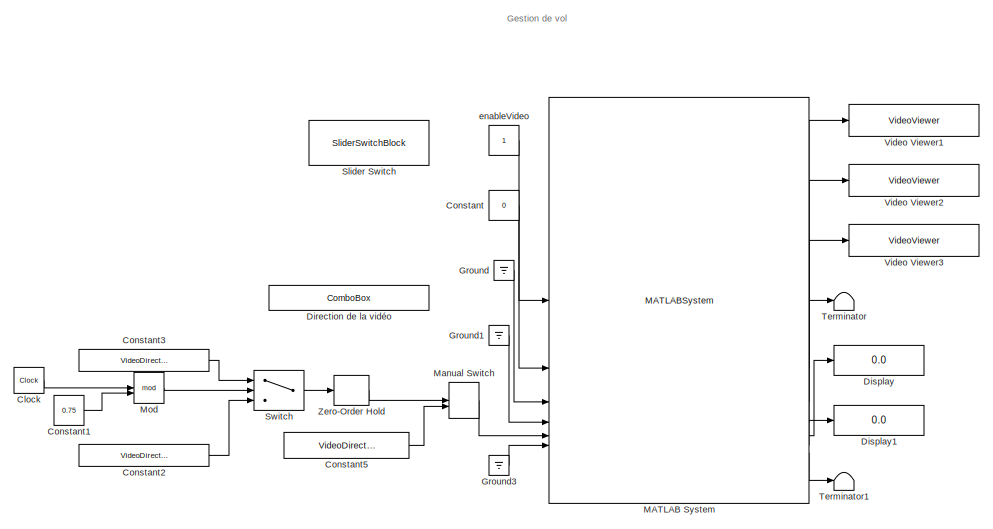
[diagram: root canvas - part 1/2, right side, full height]
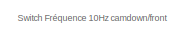
[diagram: root canvas - part 2/2, bottom left region]
MODEL slx_a9b060d5f54b
KIND model
CONFIG AbsTol = auto
CONFIG EnableMultiTasking = off
CONFIG FixedStep = auto
CONFIG MaxStep = auto
CONFIG MinStep = auto
CONFIG RelTol = 1e-3
CONFIG SampleTimeConstraint = Unconstrained
CONFIG SolverName = FixedStepAuto
CONFIG StartTime = 0.0
CONFIG StopTime = inf
BLOCK [Clock] Clock
BLOCK [Constant] Constant
  Value = 0
BLOCK [Constant] Constant1
  Value = 0.75
BLOCK [Constant] Constant2
  Value = VideoDirection.Downward
BLOCK [Constant] Constant3
  Value = VideoDirection.Forward
BLOCK [Constant] Constant5
  Value = VideoDirection.Forward
BLOCK [ComboBox] Direction de la vidéo
  EnumeratedDataType = VideoDirection
  LabelPosition = Hide
  SelectedLabel = Forward
  UseEnumeratedDataType = on
BLOCK [Display] Display
  Decimation = 1
BLOCK [Display] Display1
  Decimation = 1
BLOCK [Ground] Ground
BLOCK [Ground] Ground1
BLOCK [Ground] Ground3
BLOCK [MATLABSystem] MATLAB System
  MaskDisplay = disp('Tello_drone_control');\nport_label('input',1,'enableVideo');\nport_label('input',2,'tkoff');\nport_label('input',3,'landing');\nport_label('input',4,'enableRC');\nport_label('input',5,'cmdVideoDirection');\nport_label('input',6,'rcspeeds');\nport_label('output',1,'imageFront');\nport_label('output',2,'imageDown');\nport_label('output',3,'Eulerangles');\nport_label('output',4,'speedXYZ');\nport_label('o...<+117ch>
  MaskType = Tello_drone_control
  SimulateUsing = Interpreted execution
  System = Tello_drone_control
  droneIP = 127.0.0.1
BLOCK [ManualSwitch] Manual Switch
BLOCK [Math] Mod
  Operator = mod
BLOCK [SliderSwitchBlock] Slider Switch
BLOCK [Switch] Switch
  Criteria = u2 > Threshold
  InputSameDT = off
  SaturateOnIntegerOverflow = off
  Threshold = 0.2
BLOCK [Terminator] Terminator
BLOCK [Terminator] Terminator1
BLOCK [VideoViewer] Video Viewer1
  FigPos = [691 499 750 371]
  ScopeSpecificationString = vipscopes.VideoViewerScopeCfg('CurrentConfiguration', extmgr.ConfigurationSet(extmgr.Configuration('Core','General UI',true),extmgr.Configuration('Core','Source UI',true),extmgr.Configuration('Sources','WiredSimulink',true),extmgr.Configuration('Visuals','Video',true),extmgr.Configuration('Tools','Image Navigation Tools',true),extmgr.Configuration('Tools','Image Tool',true),extmgr.Configuration('T...<+75ch>
BLOCK [VideoViewer] Video Viewer2
  FigPos = [691 836 750 371]
  ScopeSpecificationString = vipscopes.VideoViewerScopeCfg('CurrentConfiguration', extmgr.ConfigurationSet(extmgr.Configuration('Core','General UI',true),extmgr.Configuration('Core','Source UI',true),extmgr.Configuration('Sources','WiredSimulink',true),extmgr.Configuration('Visuals','Video',true),extmgr.Configuration('Tools','Image Navigation Tools',true),extmgr.Configuration('Tools','Image Tool',true),extmgr.Configuration('T...<+74ch>
BLOCK [VideoViewer] Video Viewer3
  FigPos = [128.333333333333 836 1080.66666666667 580]
  ScopeSpecificationString = vipscopes.VideoViewerScopeCfg('CurrentConfiguration', extmgr.ConfigurationSet(extmgr.Configuration('Core','General UI',true),extmgr.Configuration('Core','Source UI',true),extmgr.Configuration('Sources','WiredSimulink',true),extmgr.Configuration('Visuals','Video',true),extmgr.Configuration('Tools','Image Navigation Tools',true),extmgr.Configuration('Tools','Image Tool',true),extmgr.Configuration('T...<+100ch>
BLOCK [ZeroOrderHold] Zero-Order Hold
  SampleTime = -1
BLOCK [Constant] enableVideo
ANNOTATION (root): Gestion de vol
ANNOTATION (root): Switch Fréquence 10Hz camdown/front
LINE Clock:1 -> Mod:1
LINE Constant1:1 -> Mod:2
LINE Constant2:1 -> Switch:3
LINE Constant3:1 -> Switch:1
LINE Constant5:1 -> Manual Switch:2
LINE Constant:1 -> MATLAB System:2
LINE Ground1:1 -> MATLAB System:4
LINE Ground3:1 -> MATLAB System:6
LINE Ground:1 -> MATLAB System:3
LINE MATLAB System:1 -> Video Viewer1:1
LINE MATLAB System:2 -> Video Viewer2:1
LINE MATLAB System:3 -> Video Viewer3:1
LINE MATLAB System:4 -> Terminator:1
LINE MATLAB System:5 -> Display:1
LINE MATLAB System:6 -> Display1:1
LINE MATLAB System:7 -> Terminator1:1
LINE Manual Switch:1 -> MATLAB System:5
LINE Mod:1 -> Switch:2
LINE Switch:1 -> Zero-Order Hold:1
LINE Zero-Order Hold:1 -> Manual Switch:1
LINE enableVideo:1 -> MATLAB System:1
